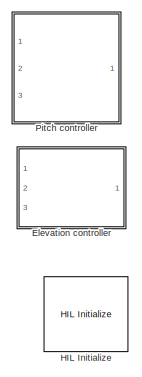
[diagram: root canvas - part 1/3, top right region]
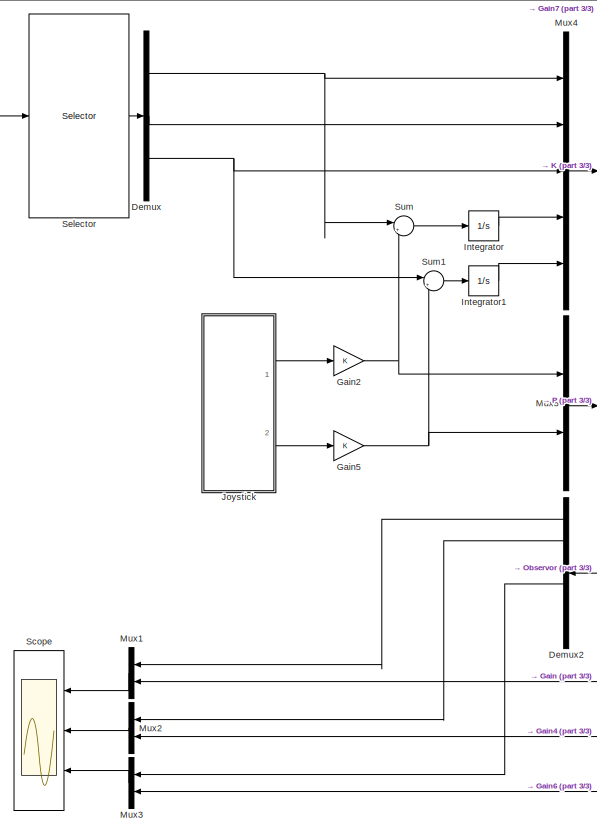
[diagram: root canvas - part 2/3, left side, full height]
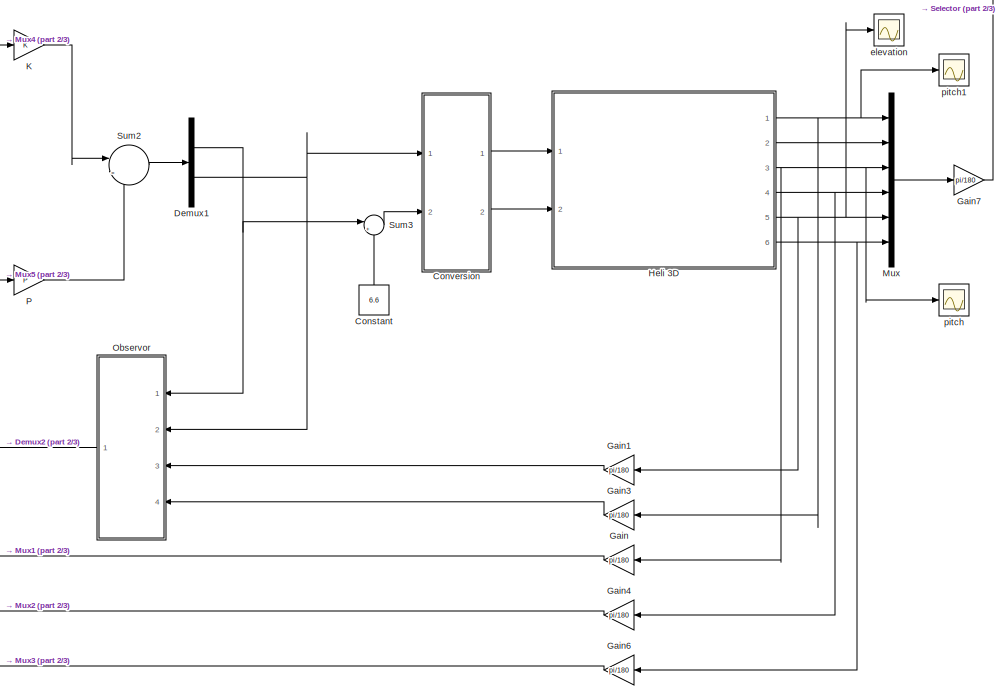
[diagram: root canvas - part 3/3, central region]
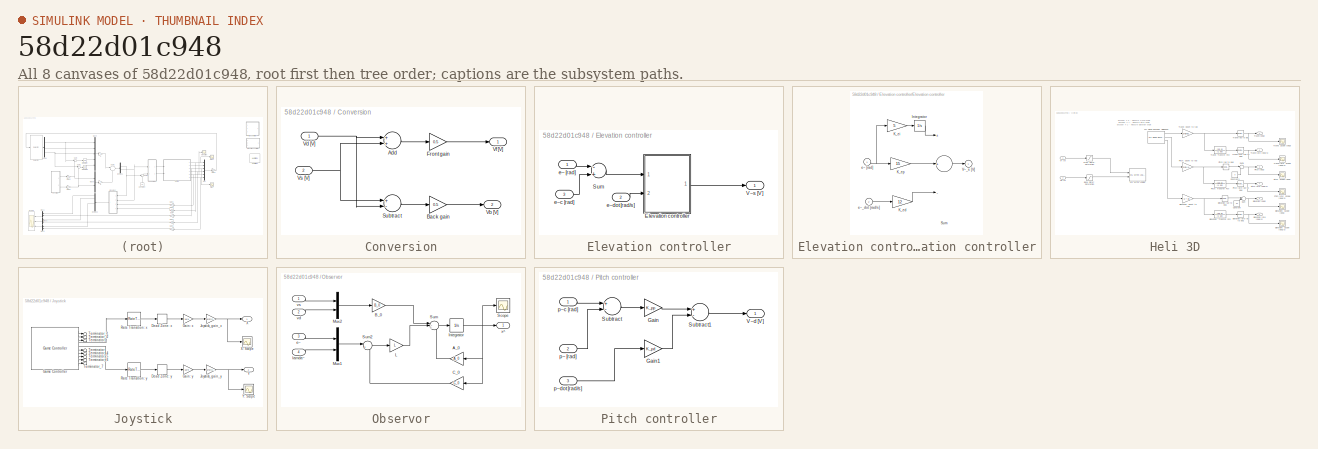
[diagram: thumbnail index - all 8 canvases of the model, root first then tree order]
MODEL slx_58d22d01c948
KIND model
CONFIG PostLoadFcn = qc_set_target_type(getConfigSet(bdroot, 'QUARC Default Target Configuration'));
BLOCK [Constant] Constant
  Value = 6.6
BLOCK [SubSystem] Conversion
  Ports = [2, 2]
  RequestExecContextInheritance = off
BLOCK [Sum] Conversion/Add
  InputSameDT = off
  OutDataTypeStr = Inherit: Inherit via internal rule
  Ports = [2, 1]
  SaturateOnIntegerOverflow = off
BLOCK [Gain] Conversion/Back gain
  Gain = 0.5
  OutDataTypeStr = Inherit: Inherit via internal rule
  ParamDataTypeStr = Inherit: Inherit via internal rule
  SaturateOnIntegerOverflow = off
BLOCK [Gain] Conversion/Front gain
  Gain = 0.5
  OutDataTypeStr = Inherit: Inherit via internal rule
  ParamDataTypeStr = Inherit: Inherit via internal rule
  SaturateOnIntegerOverflow = off
BLOCK [Sum] Conversion/Subtract
  InputSameDT = off
  Inputs = +-
  OutDataTypeStr = Inherit: Inherit via internal rule
  Ports = [2, 1]
  SaturateOnIntegerOverflow = off
BLOCK [Outport] Conversion/Vb [V]
  IconDisplay = Port number
  Port = 2
BLOCK [Inport] Conversion/Vd [V]
  IconDisplay = Port number
BLOCK [Outport] Conversion/Vf [V]
  IconDisplay = Port number
BLOCK [Inport] Conversion/Vs [V]
  IconDisplay = Port number
  Port = 2
BLOCK [Demux] Demux
  DisplayOption = bar
  Outputs = 3
  Ports = [1, 3]
BLOCK [Demux] Demux1
  DisplayOption = bar
  Outputs = 2
  Ports = [1, 2]
BLOCK [Demux] Demux2
  DisplayOption = bar
  Outputs = 6
  Ports = [1, 6]
BLOCK [SubSystem] Elevation controller
  Commented = on
  Ports = [3, 1]
  RequestExecContextInheritance = off
BLOCK [SubSystem] Elevation controller/Elevation controller
  Ports = [2, 1]
  RequestExecContextInheritance = off
BLOCK [Integrator] Elevation controller/Elevation controller/Integrator
  LimitOutput = on
  Ports = [1, 1]
BLOCK [Gain] Elevation controller/Elevation controller/K_ed
  Gain = 12
BLOCK [Gain] Elevation controller/Elevation controller/K_ei
  Gain = 5
BLOCK [Gain] Elevation controller/Elevation controller/K_ep
  Gain = 15
BLOCK [Sum] Elevation controller/Elevation controller/Sum
  Inputs = ++-
  Ports = [3, 1]
BLOCK [Outport] Elevation controller/Elevation controller/V~_s [V]
  IconDisplay = Port number
  InitialOutput = 0
BLOCK [Inport] Elevation controller/Elevation controller/e~ [rad]
  IconDisplay = Port number
BLOCK [Inport] Elevation controller/Elevation controller/e~_dot [rad//s]
  IconDisplay = Port number
  Port = 2
BLOCK [Sum] Elevation controller/Sum
  Inputs = -+
  Ports = [2, 1]
BLOCK [Outport] Elevation controller/V~s [V]
  IconDisplay = Port number
  InitialOutput = 0
BLOCK [Inport] Elevation controller/e~ [rad]
  IconDisplay = Port number
BLOCK [Inport] Elevation controller/e~c [rad]
  IconDisplay = Port number
  Port = 3
BLOCK [Inport] Elevation controller/e~dot [rad//s]
  IconDisplay = Port number
  Port = 2
BLOCK [Gain] Gain
  Gain = pi/180
  OutDataTypeStr = Inherit: Inherit via internal rule
  ParamDataTypeStr = Inherit: Inherit via internal rule
  SaturateOnIntegerOverflow = off
BLOCK [Gain] Gain1
  Gain = pi/180
  OutDataTypeStr = Inherit: Inherit via internal rule
  ParamDataTypeStr = Inherit: Inherit via internal rule
  SaturateOnIntegerOverflow = off
BLOCK [Gain] Gain2
  OutDataTypeStr = Inherit: Inherit via internal rule
  ParamDataTypeStr = Inherit: Inherit via internal rule
  SaturateOnIntegerOverflow = off
BLOCK [Gain] Gain3
  Gain = pi/180
  OutDataTypeStr = Inherit: Inherit via internal rule
  ParamDataTypeStr = Inherit: Inherit via internal rule
  SaturateOnIntegerOverflow = off
BLOCK [Gain] Gain4
  Gain = pi/180
  OutDataTypeStr = Inherit: Inherit via internal rule
  ParamDataTypeStr = Inherit: Inherit via internal rule
  SaturateOnIntegerOverflow = off
BLOCK [Gain] Gain5
  OutDataTypeStr = Inherit: Inherit via internal rule
  ParamDataTypeStr = Inherit: Inherit via internal rule
  SaturateOnIntegerOverflow = off
BLOCK [Gain] Gain6
  Gain = pi/180
  OutDataTypeStr = Inherit: Inherit via internal rule
  ParamDataTypeStr = Inherit: Inherit via internal rule
  SaturateOnIntegerOverflow = off
BLOCK [Gain] Gain7
  Gain = pi/180
  OutDataTypeStr = Inherit: Inherit via internal rule
  ParamDataTypeStr = Inherit: Inherit via internal rule
  SaturateOnIntegerOverflow = off
BLOCK [Reference] HIL Initialize  REF=quarc_library/Data Acquisition/Generic/Configuration/HIL Initialize
  AttributesFormatString = %<object_name> (%<board_type>-%<board_number>)
  Ports = []
  Priority = -99
  SourceBlock = quarc_library/Data Acquisition/Generic/Configuration/HIL Initialize
  SourceType = HIL Initialize
  UserDataPersistent = on
  active = off
  analog_input_channels = [0:7]
  analog_input_maximums = 10
  analog_input_minimums = -10
  analog_output_channels = [0:7]
  analog_output_maximums = 10
  analog_output_minimums = -10
  board_number = 0
  board_options = update_rate=normal;decimation=1
  board_type = q8_usb
  clock_modes = []
  digital_input_channels = []
  digital_output_channels = []
  digital_output_configuration = []
  encoder_channels = [0:7]
  encoder_filter_frequency = []
  exclusive = off
  final_analog_outputs = [0]
  final_digital_outputs = [1]
  final_other_outputs = []
  final_pwm_outputs = [0]
  hardware_clocks = [0:2]
  initial_analog_outputs = [0]
  initial_clock_frequencies = []
  initial_digital_outputs = [1]
  initial_encoder_counts = [0]
  initial_other_outputs = []
  initial_pwm_outputs = [0]
  object_name = HIL-1
  other_output_channels = []
  pwm_alignment = [0]
  pwm_channels = [0:7]
  pwm_configuration = [0]
  pwm_frequency = 99.532799999999995e6/4095
  pwm_leading_deadband = [0]
  pwm_modes = 0
  pwm_polarity = [1]
  pwm_trailing_deadband = [0]
  quadrature = [4]
  set_analog_input_params_at_start = on
  set_analog_input_params_at_switch_in = off
  set_analog_output_params_at_start = on
  set_analog_output_params_at_switch_in = off
  set_analog_outputs_at_start = on
  set_analog_outputs_at_switch_in = off
  set_analog_outputs_at_switch_out = off
  set_analog_outputs_at_terminate = on
  set_analog_outputs_on_watchdog = off
  set_clock_frequencies_at_start = off
  set_clock_frequencies_at_switch_in = off
  set_clock_params_at_start = off
  set_clock_params_at_switch_in = off
  set_digital_output_params_at_start = off
  set_digital_output_params_at_switch_in = off
  set_digital_outputs_at_start = on
  set_digital_outputs_at_switch_in = off
  set_digital_outputs_at_switch_out = off
  set_digital_outputs_at_terminate = on
  set_digital_outputs_on_watchdog = off
  set_encoder_counts_at_start = on
  set_encoder_counts_at_switch_in = off
  set_encoder_params_at_start = on
  set_encoder_params_at_switch_in = off
  set_other_outputs_at_start = off
  set_other_outputs_at_switch_in = off
  set_other_outputs_at_switch_out = off
  set_other_outputs_at_terminate = off
  set_other_outputs_on_watchdog = off
  set_pwm_outputs_at_start = on
  set_pwm_outputs_at_switch_in = off
  set_pwm_outputs_at_switch_out = off
  set_pwm_outputs_at_terminate = on
  set_pwm_outputs_on_watchdog = off
  set_pwm_params_at_start = on
  set_pwm_params_at_switch_in = off
  watchdog_analog_outputs = 0
  watchdog_digital_outputs = [1]
  watchdog_other_outputs = []
  watchdog_pwm_outputs = [0]
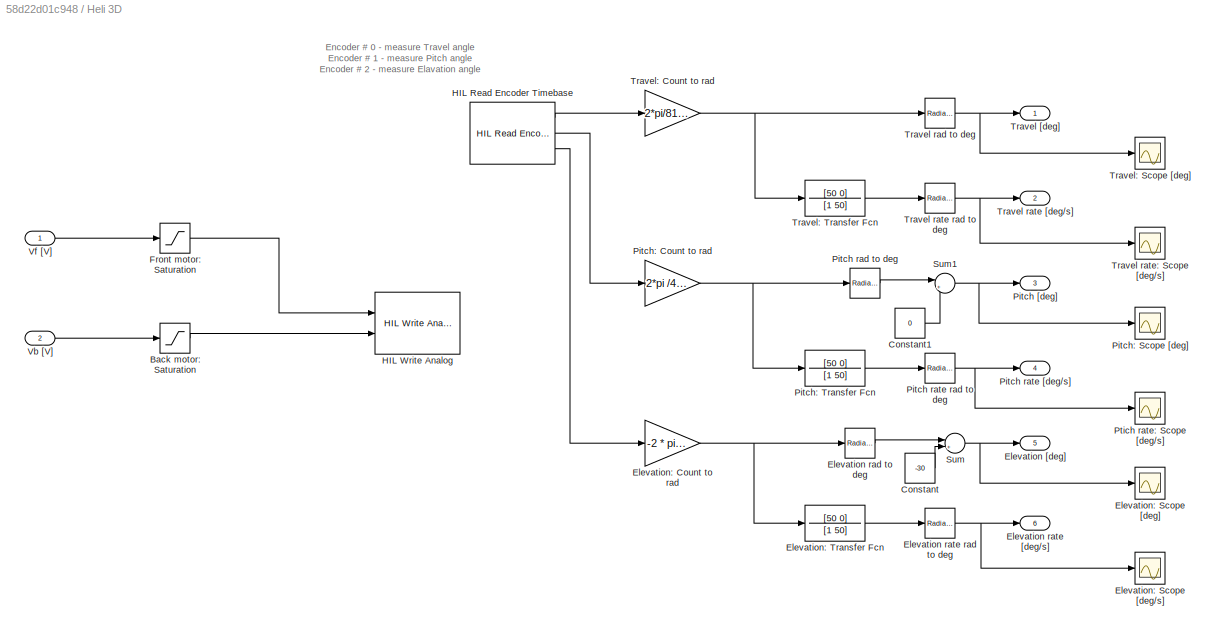
BLOCK [SubSystem] Heli 3D
  Ports = [2, 6]
  RequestExecContextInheritance = off
BLOCK [Saturate] Heli 3D/Back motor: Saturation
  InputPortMap = u0
  LowerLimit = -5
  Ports = [1, 1]
  UpperLimit = 5
BLOCK [Constant] Heli 3D/Constant
  Value = -30
BLOCK [Constant] Heli 3D/Constant1
  Value = 0
BLOCK [Outport] Heli 3D/Elevation [deg]
  IconDisplay = Port number
  Port = 5
BLOCK [Reference] Heli 3D/Elevation rad to deg  REF=simulink_extras/Transformations/Radians
to Degrees
  Ports = [1, 1]
  SourceBlock = simulink_extras/Transformations/Radians\nto Degrees
  SourceType = RadiansToDegrees
BLOCK [Outport] Heli 3D/Elevation rate [deg//s]
  IconDisplay = Port number
  Port = 6
BLOCK [Reference] Heli 3D/Elevation rate rad to deg  REF=simulink_extras/Transformations/Radians
to Degrees
  Ports = [1, 1]
  SourceBlock = simulink_extras/Transformations/Radians\nto Degrees
  SourceType = RadiansToDegrees
BLOCK [Gain] Heli 3D/Elevation: Count to rad
  Gain = -2 * pi /4096
  OutDataTypeStr = Inherit: Inherit via internal rule
  ParamDataTypeStr = Inherit: Inherit via internal rule
  SaturateOnIntegerOverflow = off
BLOCK [Scope] Heli 3D/Elevation: Scope [deg//s]
  DataFormat = StructureWithTime
  Floating = off
  NumInputPorts = 1
  Ports = [1]
  SampleTime = 0
  SaveName = ScopeData13
  ShowLegends = off
  YMax = 15
  YMin = -15
BLOCK [Scope] Heli 3D/Elevation: Scope [deg]
  DataFormat = StructureWithTime
  Floating = off
  NumInputPorts = 1
  Ports = [1]
  SampleTime = 0
  SaveName = ScopeData12
  ShowLegends = off
  YMax = -0.6
  YMin = -2.1
BLOCK [TransferFcn] Heli 3D/Elevation: Transfer Fcn
  Denominator = [1 50]
  Numerator = [50 0]
BLOCK [Saturate] Heli 3D/Front motor: Saturation
  InputPortMap = u0
  LowerLimit = -5
  Ports = [1, 1]
  UpperLimit = 5
BLOCK [Reference] Heli 3D/HIL Read Encoder Timebase  REF=quarc_library/Data Acquisition/Generic/Timebases/HIL Read Encoder
Timebase
  AttributesFormatString = (%<object_name>)
  Ports = [0, 3]
  SourceBlock = quarc_library/Data Acquisition/Generic/Timebases/HIL Read Encoder\nTimebase
  SourceType = HIL Read Encoder Timebase
  UserDataPersistent = on
  active = on
  channels = [0:2]
  clock = 0
  data_type = double
  data_type_mode = Inherit via back propagation
  object_name = HIL-1
  samples_in_buffer = max(ceil(1/qc_get_step_size), 1)
  vector_output = off
BLOCK [Reference] Heli 3D/HIL Write Analog  REF=quarc_library/Data Acquisition/Generic/Immediate I//O/HIL Write Analog
  AttributesFormatString = (%<object_name>)
  Ports = [2]
  SourceBlock = quarc_library/Data Acquisition/Generic/Immediate I//O/HIL Write Analog
  SourceType = HIL Write Analog
  UserDataPersistent = on
  active = off
  channels = [0:1]
  object_name = HIL-1
  sample_time = -1
  vector_input = off
BLOCK [Outport] Heli 3D/Pitch [deg]
  IconDisplay = Port number
  Port = 3
BLOCK [Reference] Heli 3D/Pitch rad to deg  REF=simulink_extras/Transformations/Radians
to Degrees
  Ports = [1, 1]
  SourceBlock = simulink_extras/Transformations/Radians\nto Degrees
  SourceType = RadiansToDegrees
BLOCK [Outport] Heli 3D/Pitch rate [deg//s]
  IconDisplay = Port number
  Port = 4
BLOCK [Reference] Heli 3D/Pitch rate rad to deg  REF=simulink_extras/Transformations/Radians
to Degrees
  Ports = [1, 1]
  SourceBlock = simulink_extras/Transformations/Radians\nto Degrees
  SourceType = RadiansToDegrees
BLOCK [Gain] Heli 3D/Pitch: Count to rad
  Gain = 2*pi /4096
  OutDataTypeStr = Inherit: Inherit via internal rule
  ParamDataTypeStr = Inherit: Inherit via internal rule
  SaturateOnIntegerOverflow = off
BLOCK [Scope] Heli 3D/Pitch: Scope [deg]
  DataFormat = StructureWithTime
  Floating = off
  NumInputPorts = 1
  Ports = [1]
  SampleTime = 0
  SaveName = ScopeData10
  ShowLegends = off
  YMax = 15
  YMin = -15
BLOCK [TransferFcn] Heli 3D/Pitch: Transfer Fcn
  Denominator = [1 50]
  Numerator = [50 0]
BLOCK [Scope] Heli 3D/Ptich rate: Scope [deg//s]
  DataFormat = StructureWithTime
  Floating = off
  NumInputPorts = 1
  Ports = [1]
  SampleTime = 0
  SaveName = ScopeData11
  ShowLegends = off
  YMax = 15
  YMin = -15
BLOCK [Sum] Heli 3D/Sum
  IconShape = round
  InputSameDT = off
  Inputs = |++
  OutDataTypeStr = Inherit: Inherit via internal rule
  Ports = [2, 1]
  SaturateOnIntegerOverflow = off
BLOCK [Sum] Heli 3D/Sum1
  IconShape = round
  InputSameDT = off
  Inputs = |++
  OutDataTypeStr = Inherit: Inherit via internal rule
  Ports = [2, 1]
  SaturateOnIntegerOverflow = off
BLOCK [Outport] Heli 3D/Travel [deg]
  IconDisplay = Port number
BLOCK [Reference] Heli 3D/Travel rad to deg  REF=simulink_extras/Transformations/Radians
to Degrees
  Ports = [1, 1]
  SourceBlock = simulink_extras/Transformations/Radians\nto Degrees
  SourceType = RadiansToDegrees
BLOCK [Reference] Heli 3D/Travel rate  rad to deg  REF=simulink_extras/Transformations/Radians
to Degrees
  Ports = [1, 1]
  SourceBlock = simulink_extras/Transformations/Radians\nto Degrees
  SourceType = RadiansToDegrees
BLOCK [Outport] Heli 3D/Travel rate [deg//s]
  IconDisplay = Port number
  Port = 2
BLOCK [Scope] Heli 3D/Travel rate: Scope [deg//s]
  DataFormat = StructureWithTime
  Floating = off
  NumInputPorts = 1
  Ports = [1]
  SampleTime = 0
  SaveName = ScopeData9
  ShowLegends = off
  YMax = 15
  YMin = -15
BLOCK [Gain] Heli 3D/Travel: Count to rad
  Gain = 2*pi/8192
  OutDataTypeStr = Inherit: Inherit via internal rule
  ParamDataTypeStr = Inherit: Inherit via internal rule
  SaturateOnIntegerOverflow = off
BLOCK [Scope] Heli 3D/Travel: Scope [deg]
  DataFormat = StructureWithTime
  Floating = off
  NumInputPorts = 1
  Ports = [1]
  SampleTime = 0
  SaveName = ScopeData8
  ShowLegends = off
  TimeRange = 30
  YMax = 350
  YMin = 0
BLOCK [TransferFcn] Heli 3D/Travel: Transfer Fcn
  Denominator = [1 50]
  Numerator = [50 0]
BLOCK [Inport] Heli 3D/Vb [V]
  IconDisplay = Port number
  Port = 2
BLOCK [Inport] Heli 3D/Vf [V]
  IconDisplay = Port number
BLOCK [Integrator] Integrator
  Ports = [1, 1]
BLOCK [Integrator] Integrator1
  Ports = [1, 1]
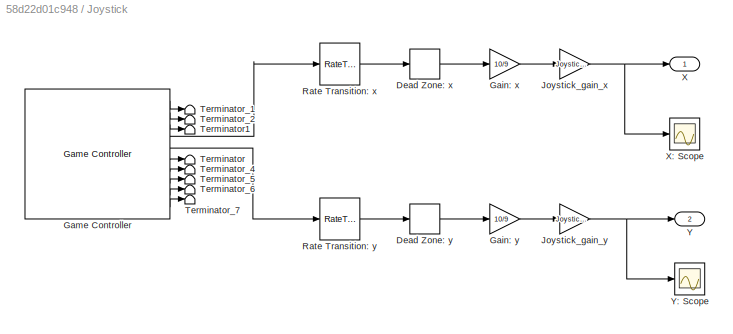
BLOCK [SubSystem] Joystick
  Ports = [0, 2]
  RequestExecContextInheritance = off
BLOCK [DeadZone] Joystick/Dead Zone: x
  LowerValue = -0.1
  UpperValue = 0.1
BLOCK [DeadZone] Joystick/Dead Zone: y
  LowerValue = -0.1
  UpperValue = 0.1
BLOCK [Gain] Joystick/Gain: x
  Gain = 10/9
  OutDataTypeStr = Inherit: Inherit via internal rule
  ParamDataTypeStr = Inherit: Inherit via internal rule
  SaturateOnIntegerOverflow = off
BLOCK [Gain] Joystick/Gain: y
  Gain = 10/9
  OutDataTypeStr = Inherit: Inherit via internal rule
  ParamDataTypeStr = Inherit: Inherit via internal rule
  SaturateOnIntegerOverflow = off
BLOCK [Reference] Joystick/Game Controller  REF=quarc_library/Devices/Peripherals/Target/Game Controller
  Ports = [0, 10]
  SourceBlock = quarc_library/Devices/Peripherals/Target/Game Controller
  SourceType = Game Controller
  auto_center = off
  buffer_size = 12
  controller = 1
  deadzone = []
  enabled = on
  sample_time = max(qc_get_step_size, 0.01)
  saturation = []
BLOCK [Gain] Joystick/Joystick_gain_x
  Gain = Joystick_gain_x
  OutDataTypeStr = Inherit: Inherit via internal rule
  ParamDataTypeStr = Inherit: Inherit via internal rule
  SaturateOnIntegerOverflow = off
BLOCK [Gain] Joystick/Joystick_gain_y
  Gain = Joystick_gain_y
  OutDataTypeStr = Inherit: Inherit via internal rule
  ParamDataTypeStr = Inherit: Inherit via internal rule
  SaturateOnIntegerOverflow = off
BLOCK [RateTransition] Joystick/Rate Transition: x
BLOCK [RateTransition] Joystick/Rate Transition: y
BLOCK [Terminator] Joystick/Terminator
BLOCK [Terminator] Joystick/Terminator1
BLOCK [Terminator] Joystick/Terminator_1
BLOCK [Terminator] Joystick/Terminator_2
BLOCK [Terminator] Joystick/Terminator_4
BLOCK [Terminator] Joystick/Terminator_5
BLOCK [Terminator] Joystick/Terminator_6
BLOCK [Terminator] Joystick/Terminator_7
BLOCK [Outport] Joystick/X
  IconDisplay = Port number
BLOCK [Scope] Joystick/X: Scope
  DataFormat = StructureWithTime
  Floating = off
  NumInputPorts = 1
  Ports = [1]
  SampleTime = 0
  SaveName = ScopeData7
  ShowLegends = off
  YMax = 1
  YMin = -1
  ZoomMode = yonly
BLOCK [Outport] Joystick/Y
  IconDisplay = Port number
  Port = 2
BLOCK [Scope] Joystick/Y: Scope
  DataFormat = StructureWithTime
  Floating = off
  NumInputPorts = 1
  Ports = [1]
  SampleTime = 0
  SaveName = ScopeData5
  ShowLegends = off
  YMax = 10
  YMin = -10
BLOCK [Gain] K
  Gain = K
  Multiplication = Matrix(K*u)
  OutDataTypeStr = Inherit: Inherit via internal rule
  ParamDataTypeStr = Inherit: Inherit via internal rule
  SaturateOnIntegerOverflow = off
BLOCK [Mux] Mux
  DisplayOption = bar
  Inputs = 6
  Ports = [6, 1]
BLOCK [Mux] Mux1
  DisplayOption = bar
  Inputs = 2
  Ports = [2, 1]
BLOCK [Mux] Mux2
  DisplayOption = bar
  Inputs = 2
  Ports = [2, 1]
BLOCK [Mux] Mux3
  DisplayOption = bar
  Inputs = 2
  Ports = [2, 1]
BLOCK [Mux] Mux4
  DisplayOption = bar
  Inputs = 5
  Ports = [5, 1]
BLOCK [Mux] Mux5
  DisplayOption = bar
  Inputs = 2
  Ports = [2, 1]
BLOCK [SubSystem] Observor
  Ports = [4, 1]
  RequestExecContextInheritance = off
BLOCK [Gain] Observor/A_0
  Gain = A_0
  Multiplication = Matrix(K*u)
  OutDataTypeStr = Inherit: Inherit via internal rule
  ParamDataTypeStr = Inherit: Inherit via internal rule
  SaturateOnIntegerOverflow = off
BLOCK [Gain] Observor/B_0
  Gain = B_0
  Multiplication = Matrix(K*u)
  OutDataTypeStr = Inherit: Inherit via internal rule
  ParamDataTypeStr = Inherit: Inherit via internal rule
  SaturateOnIntegerOverflow = off
BLOCK [Gain] Observor/C_0
  Gain = C_0
  Multiplication = Matrix(K*u)
  OutDataTypeStr = Inherit: Inherit via internal rule
  ParamDataTypeStr = Inherit: Inherit via internal rule
  SaturateOnIntegerOverflow = off
BLOCK [Integrator] Observor/Integrator
  Ports = [1, 1]
BLOCK [Gain] Observor/L
  Gain = L
  Multiplication = Matrix(K*u)
  OutDataTypeStr = Inherit: Inherit via internal rule
  ParamDataTypeStr = Inherit: Inherit via internal rule
  SaturateOnIntegerOverflow = off
BLOCK [Mux] Observor/Mux1
  DisplayOption = bar
  Inputs = 2
  Ports = [2, 1]
BLOCK [Mux] Observor/Mux2
  DisplayOption = bar
  Inputs = 2
  Ports = [2, 1]
BLOCK [Scope] Observor/Scope
  Floating = off
  NumInputPorts = 1
  Ports = [1]
  ShowLegends = off
BLOCK [Sum] Observor/Sum
  IconShape = round
  InputSameDT = off
  Inputs = |+++
  OutDataTypeStr = Inherit: Inherit via internal rule
  Ports = [3, 1]
  SaturateOnIntegerOverflow = off
BLOCK [Sum] Observor/Sum2
  IconShape = round
  InputSameDT = off
  Inputs = |+-
  OutDataTypeStr = Inherit: Inherit via internal rule
  Ports = [2, 1]
  SaturateOnIntegerOverflow = off
BLOCK [Inport] Observor/e~
  IconDisplay = Port number
  Port = 3
BLOCK [Inport] Observor/lamda~
  IconDisplay = Port number
  Port = 4
BLOCK [Inport] Observor/vd
  IconDisplay = Port number
  Port = 2
BLOCK [Inport] Observor/vs
  IconDisplay = Port number
BLOCK [Outport] Observor/x^
  IconDisplay = Port number
BLOCK [Gain] P
  Gain = P
  Multiplication = Matrix(K*u)
  OutDataTypeStr = Inherit: Inherit via internal rule
  ParamDataTypeStr = Inherit: Inherit via internal rule
  SaturateOnIntegerOverflow = off
BLOCK [SubSystem] Pitch controller
  Commented = on
  Ports = [3, 1]
  RequestExecContextInheritance = off
BLOCK [Gain] Pitch controller/Gain
  Gain = K_pp
  OutDataTypeStr = Inherit: Inherit via internal rule
  ParamDataTypeStr = Inherit: Inherit via internal rule
  SaturateOnIntegerOverflow = off
BLOCK [Gain] Pitch controller/Gain1
  Gain = K_pd
  OutDataTypeStr = Inherit: Inherit via internal rule
  ParamDataTypeStr = Inherit: Inherit via internal rule
  SaturateOnIntegerOverflow = off
BLOCK [Sum] Pitch controller/Subtract
  InputSameDT = off
  Inputs = +-
  OutDataTypeStr = Inherit: Inherit via internal rule
  Ports = [2, 1]
  SaturateOnIntegerOverflow = off
BLOCK [Sum] Pitch controller/Subtract1
  InputSameDT = off
  Inputs = +-
  OutDataTypeStr = Inherit: Inherit via internal rule
  Ports = [2, 1]
  SaturateOnIntegerOverflow = off
BLOCK [Outport] Pitch controller/V~d [V]
  IconDisplay = Port number
  InitialOutput = 0
BLOCK [Inport] Pitch controller/p~ [rad]
  IconDisplay = Port number
  Port = 2
BLOCK [Inport] Pitch controller/p~c [rad]
  IconDisplay = Port number
BLOCK [Inport] Pitch controller/p~dot [rad//s]
  IconDisplay = Port number
  Port = 3
BLOCK [Scope] Scope
  DataFormat = StructureWithTime
  Floating = off
  NumInputPorts = 3
  Ports = [3]
  Priority = 3
  SampleTime = 0
  SaveName = ScopeData1
  ShowLegends = off
  YMax = 5~5~5
  YMin = -5~-5~-5
  ZoomMode = yonly
BLOCK [Selector] Selector
  Indices = [3 4 6]
  InputPortWidth = 6
  Ports = [1, 1]
BLOCK [Sum] Sum
  IconShape = round
  InputSameDT = off
  Inputs = |+-
  OutDataTypeStr = Inherit: Inherit via internal rule
  Ports = [2, 1]
  SaturateOnIntegerOverflow = off
BLOCK [Sum] Sum1
  IconShape = round
  InputSameDT = off
  Inputs = |+-
  OutDataTypeStr = Inherit: Inherit via internal rule
  Ports = [2, 1]
  SaturateOnIntegerOverflow = off
BLOCK [Sum] Sum2
  IconShape = round
  InputSameDT = off
  Inputs = |-+
  OutDataTypeStr = Inherit: Inherit via internal rule
  Ports = [2, 1]
  SaturateOnIntegerOverflow = off
BLOCK [Sum] Sum3
  IconShape = round
  InputSameDT = off
  Inputs = |++
  OutDataTypeStr = Inherit: Inherit via internal rule
  Ports = [2, 1]
  SaturateOnIntegerOverflow = off
BLOCK [Scope] elevation
  Floating = off
  NumInputPorts = 1
  Ports = [1]
  SaveName = ScopeData2
  ShowLegends = off
BLOCK [Scope] pitch
  Floating = off
  NumInputPorts = 1
  Ports = [1]
  SaveName = ScopeData3
  ShowLegends = off
BLOCK [Scope] pitch1
  Floating = off
  NumInputPorts = 1
  Ports = [1]
  SaveName = ScopeData4
  ShowLegends = off
ANNOTATION Heli 3D: Encoder # 0 - measure Travel angle Encoder # 1 - measure Pitch angle Encoder # 2 - measure Elavation angle
LINE Constant:1 -> Sum3:2
LINE Conversion/Add:1 -> Conversion/Front gain:1
LINE Conversion/Back gain:1 -> Conversion/Vb [V]:1
LINE Conversion/Front gain:1 -> Conversion/Vf [V]:1
LINE Conversion/Subtract:1 -> Conversion/Back gain:1
NET Conversion/Vd [V]:1 -> Conversion/Add:1, Conversion/Subtract:2
NET Conversion/Vs [V]:1 -> Conversion/Add:2, Conversion/Subtract:1
LINE Conversion:1 -> Heli 3D:1
LINE Conversion:2 -> Heli 3D:2
NET Demux1:1 -> Observor:1, Sum3:1
NET Demux1:2 -> Conversion:1, Observor:2
LINE Demux2:1 -> Mux1:1
LINE Demux2:2 -> Mux2:1
LINE Demux2:4 -> Mux3:1
NET Demux:1 -> Mux4:1, Sum:1
LINE Demux:2 -> Mux4:2
NET Demux:3 -> Mux4:3, Sum1:1
LINE Elevation controller/Elevation controller/Integrator:1 -> Elevation controller/Elevation controller/Sum:1
LINE Elevation controller/Elevation controller/K_ed:1 -> Elevation controller/Elevation controller/Sum:3
LINE Elevation controller/Elevation controller/K_ei:1 -> Elevation controller/Elevation controller/Integrator:1
LINE Elevation controller/Elevation controller/K_ep:1 -> Elevation controller/Elevation controller/Sum:2
LINE Elevation controller/Elevation controller/Sum:1 -> Elevation controller/Elevation controller/V~_s [V]:1
NET Elevation controller/Elevation controller/e~ [rad]:1 -> Elevation controller/Elevation controller/K_ei:1, Elevation controller/Elevation controller/K_ep:1
LINE Elevation controller/Elevation controller/e~_dot [rad//s]:1 -> Elevation controller/Elevation controller/K_ed:1
LINE Elevation controller/Elevation controller:1 -> Elevation controller/V~s [V]:1
LINE Elevation controller/Sum:1 -> Elevation controller/Elevation controller:1
LINE Elevation controller/e~ [rad]:1 -> Elevation controller/Sum:1
LINE Elevation controller/e~c [rad]:1 -> Elevation controller/Sum:2
LINE Elevation controller/e~dot [rad//s]:1 -> Elevation controller/Elevation controller:2
LINE Gain1:1 -> Observor:3
NET Gain2:1 -> Mux5:1, Sum:2
LINE Gain3:1 -> Observor:4
LINE Gain4:1 -> Mux2:2
NET Gain5:1 -> Mux5:2, Sum1:2
LINE Gain6:1 -> Mux3:2
LINE Gain7:1 -> Selector:1
LINE Gain:1 -> Mux1:2
LINE Heli 3D/Back motor: Saturation:1 -> Heli 3D/HIL Write Analog:2
LINE Heli 3D/Constant1:1 -> Heli 3D/Sum1:2
LINE Heli 3D/Constant:1 -> Heli 3D/Sum:2
LINE Heli 3D/Elevation rad to deg:1 -> Heli 3D/Sum:1
NET Heli 3D/Elevation rate rad to deg:1 -> Heli 3D/Elevation rate [deg//s]:1, Heli 3D/Elevation: Scope [deg//s]:1
NET Heli 3D/Elevation: Count to rad:1 -> Heli 3D/Elevation rad to deg:1, Heli 3D/Elevation: Transfer Fcn:1
LINE Heli 3D/Elevation: Transfer Fcn:1 -> Heli 3D/Elevation rate rad to deg:1
LINE Heli 3D/Front motor: Saturation:1 -> Heli 3D/HIL Write Analog:1
LINE Heli 3D/HIL Read Encoder Timebase:1 -> Heli 3D/Travel: Count to rad:1
LINE Heli 3D/HIL Read Encoder Timebase:2 -> Heli 3D/Pitch: Count to rad:1
LINE Heli 3D/HIL Read Encoder Timebase:3 -> Heli 3D/Elevation: Count to rad:1
LINE Heli 3D/Pitch rad to deg:1 -> Heli 3D/Sum1:1
NET Heli 3D/Pitch rate rad to deg:1 -> Heli 3D/Pitch rate [deg//s]:1, Heli 3D/Ptich rate: Scope [deg//s]:1
NET Heli 3D/Pitch: Count to rad:1 -> Heli 3D/Pitch rad to deg:1, Heli 3D/Pitch: Transfer Fcn:1
LINE Heli 3D/Pitch: Transfer Fcn:1 -> Heli 3D/Pitch rate rad to deg:1
NET Heli 3D/Sum1:1 -> Heli 3D/Pitch [deg]:1, Heli 3D/Pitch: Scope [deg]:1
NET Heli 3D/Sum:1 -> Heli 3D/Elevation [deg]:1, Heli 3D/Elevation: Scope [deg]:1
NET Heli 3D/Travel rad to deg:1 -> Heli 3D/Travel [deg]:1, Heli 3D/Travel: Scope [deg]:1
NET Heli 3D/Travel rate  rad to deg:1 -> Heli 3D/Travel rate [deg//s]:1, Heli 3D/Travel rate: Scope [deg//s]:1
NET Heli 3D/Travel: Count to rad:1 -> Heli 3D/Travel rad to deg:1, Heli 3D/Travel: Transfer Fcn:1
LINE Heli 3D/Travel: Transfer Fcn:1 -> Heli 3D/Travel rate  rad to deg:1
LINE Heli 3D/Vb [V]:1 -> Heli 3D/Back motor: Saturation:1
LINE Heli 3D/Vf [V]:1 -> Heli 3D/Front motor: Saturation:1
NET Heli 3D:1 -> Gain3:1, Mux:1, pitch1:1
LINE Heli 3D:2 -> Mux:2
NET Heli 3D:3 -> Gain:1, Mux:3, pitch:1
NET Heli 3D:4 -> Gain4:1, Mux:4
NET Heli 3D:5 -> Gain1:1, Mux:5, elevation:1
NET Heli 3D:6 -> Gain6:1, Mux:6
LINE Integrator1:1 -> Mux4:5
LINE Integrator:1 -> Mux4:4
LINE Joystick/Dead Zone: x:1 -> Joystick/Gain: x:1
LINE Joystick/Dead Zone: y:1 -> Joystick/Gain: y:1
LINE Joystick/Gain: x:1 -> Joystick/Joystick_gain_x:1
LINE Joystick/Gain: y:1 -> Joystick/Joystick_gain_y:1
LINE Joystick/Game Controller:1 -> Joystick/Terminator_1:1
LINE Joystick/Game Controller:10 -> Joystick/Terminator_7:1
LINE Joystick/Game Controller:2 -> Joystick/Terminator_2:1
LINE Joystick/Game Controller:3 -> Joystick/Terminator1:1
LINE Joystick/Game Controller:4 -> Joystick/Rate Transition: x:1
LINE Joystick/Game Controller:5 -> Joystick/Rate Transition: y:1
LINE Joystick/Game Controller:6 -> Joystick/Terminator:1
LINE Joystick/Game Controller:7 -> Joystick/Terminator_4:1
LINE Joystick/Game Controller:8 -> Joystick/Terminator_5:1
LINE Joystick/Game Controller:9 -> Joystick/Terminator_6:1
NET Joystick/Joystick_gain_x:1 -> Joystick/X: Scope:1, Joystick/X:1
NET Joystick/Joystick_gain_y:1 -> Joystick/Y: Scope:1, Joystick/Y:1
LINE Joystick/Rate Transition: x:1 -> Joystick/Dead Zone: x:1
LINE Joystick/Rate Transition: y:1 -> Joystick/Dead Zone: y:1
LINE Joystick:1 -> Gain2:1
LINE Joystick:2 -> Gain5:1
LINE K:1 -> Sum2:1
LINE Mux1:1 -> Scope:1
LINE Mux2:1 -> Scope:2
LINE Mux3:1 -> Scope:3
LINE Mux4:1 -> K:1
LINE Mux5:1 -> P:1
LINE Mux:1 -> Gain7:1
LINE Observor/A_0:1 -> Observor/Sum:3
LINE Observor/B_0:1 -> Observor/Sum:1
LINE Observor/C_0:1 -> Observor/Sum2:2
NET Observor/Integrator:1 -> Observor/A_0:1, Observor/C_0:1, Observor/Scope:1, Observor/x^:1
LINE Observor/L:1 -> Observor/Sum:2
LINE Observor/Mux1:1 -> Observor/Sum2:1
LINE Observor/Mux2:1 -> Observor/B_0:1
LINE Observor/Sum2:1 -> Observor/L:1
LINE Observor/Sum:1 -> Observor/Integrator:1
LINE Observor/e~:1 -> Observor/Mux1:1
LINE Observor/lamda~:1 -> Observor/Mux1:2
LINE Observor/vd:1 -> Observor/Mux2:2
LINE Observor/vs:1 -> Observor/Mux2:1
LINE Observor:1 -> Demux2:1
LINE P:1 -> Sum2:2
LINE Pitch controller/Gain1:1 -> Pitch controller/Subtract1:2
LINE Pitch controller/Gain:1 -> Pitch controller/Subtract1:1
LINE Pitch controller/Subtract1:1 -> Pitch controller/V~d [V]:1
LINE Pitch controller/Subtract:1 -> Pitch controller/Gain:1
LINE Pitch controller/p~ [rad]:1 -> Pitch controller/Subtract:2
LINE Pitch controller/p~c [rad]:1 -> Pitch controller/Subtract:1
LINE Pitch controller/p~dot [rad//s]:1 -> Pitch controller/Gain1:1
LINE Selector:1 -> Demux:1
LINE Sum1:1 -> Integrator1:1
LINE Sum2:1 -> Demux1:1
LINE Sum3:1 -> Conversion:2
LINE Sum:1 -> Integrator:1
note: NET lines group one-source signal fan-out (src -> all destinations, sorted); 1:1 wires keep LINE
